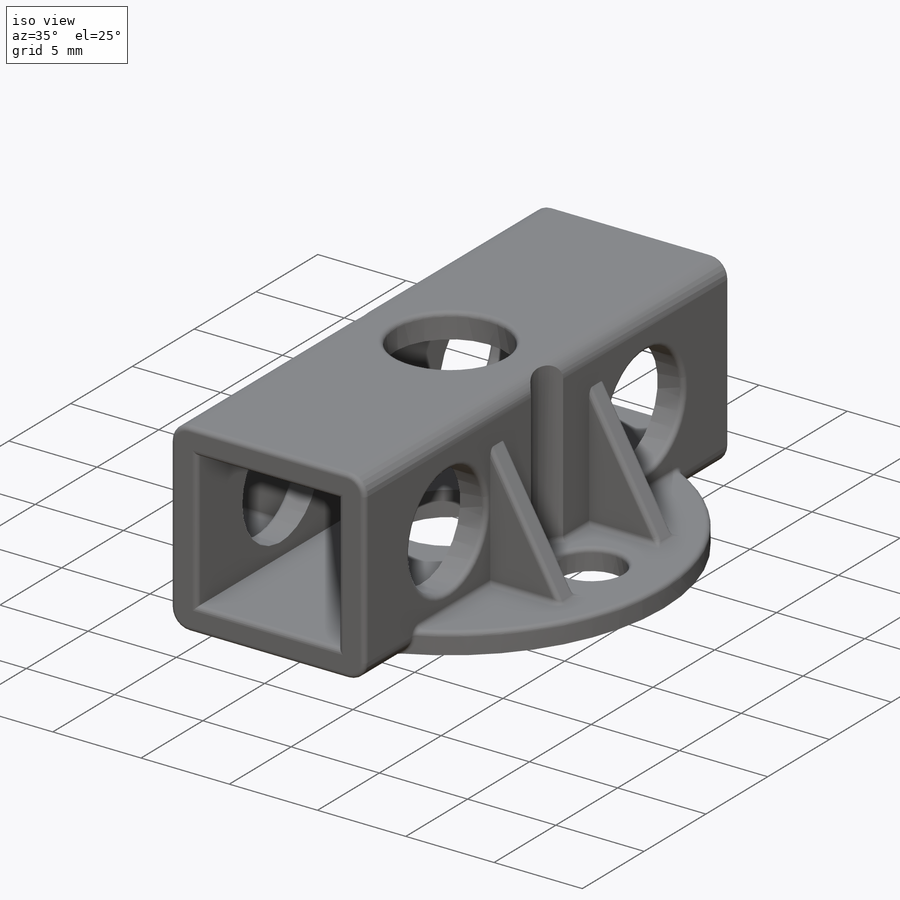
[diagram: iso view]
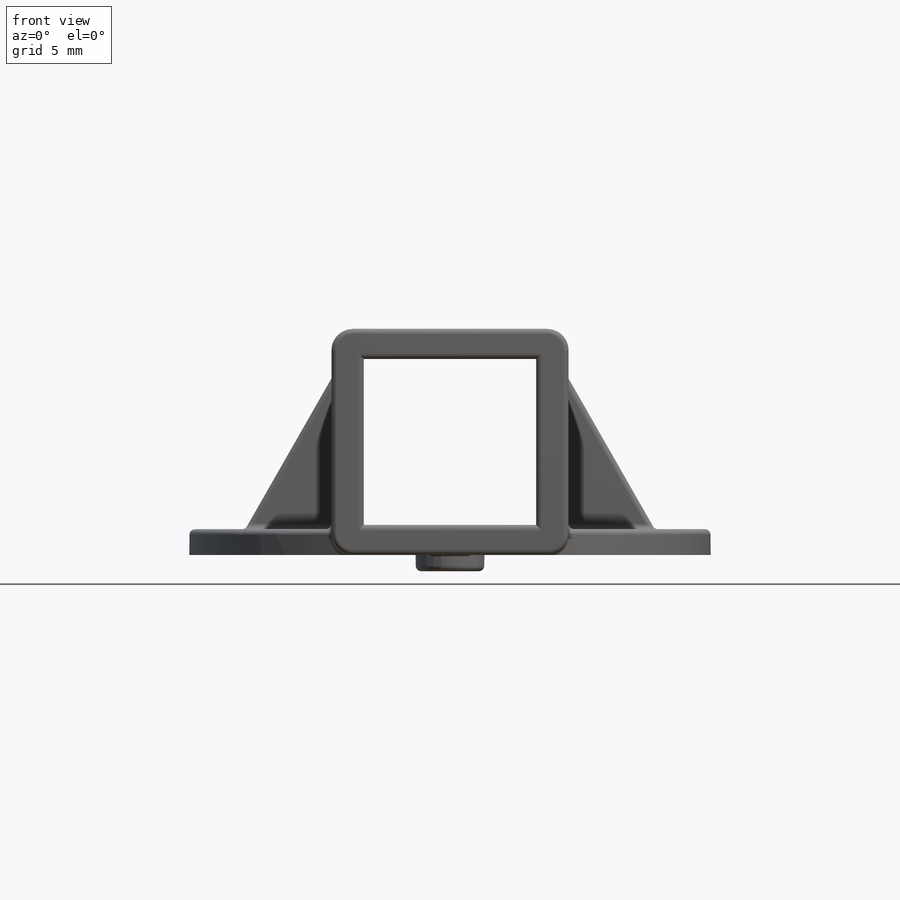
[diagram: front view]
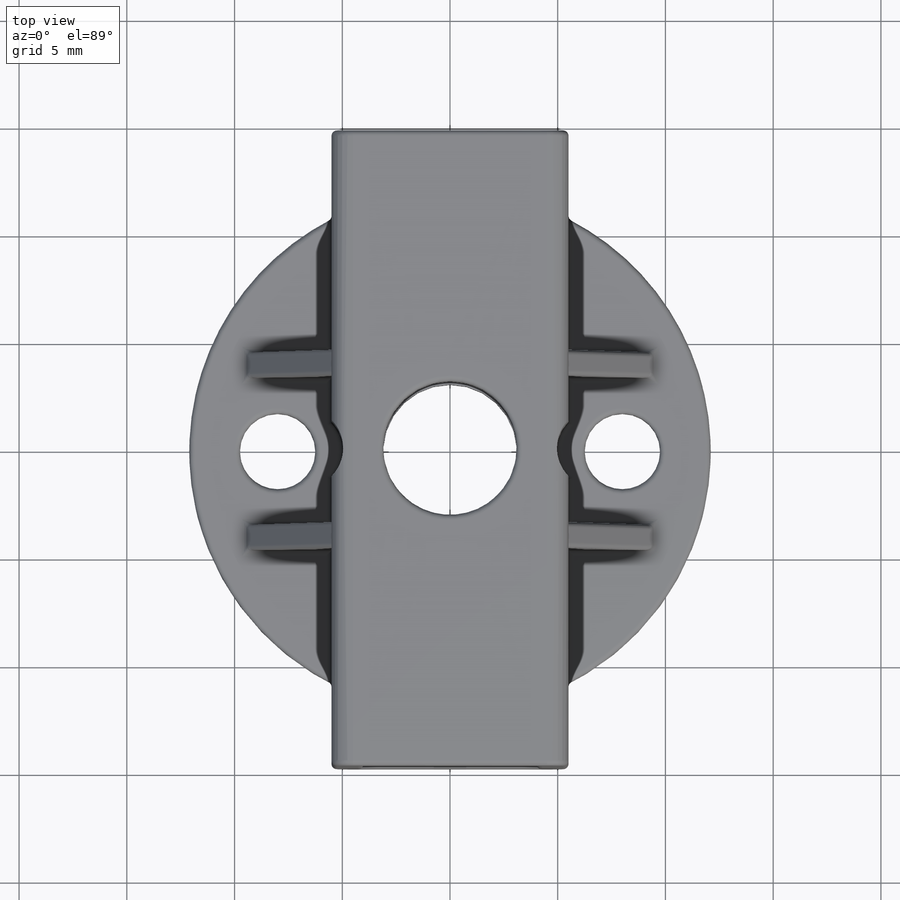
[diagram: top view]
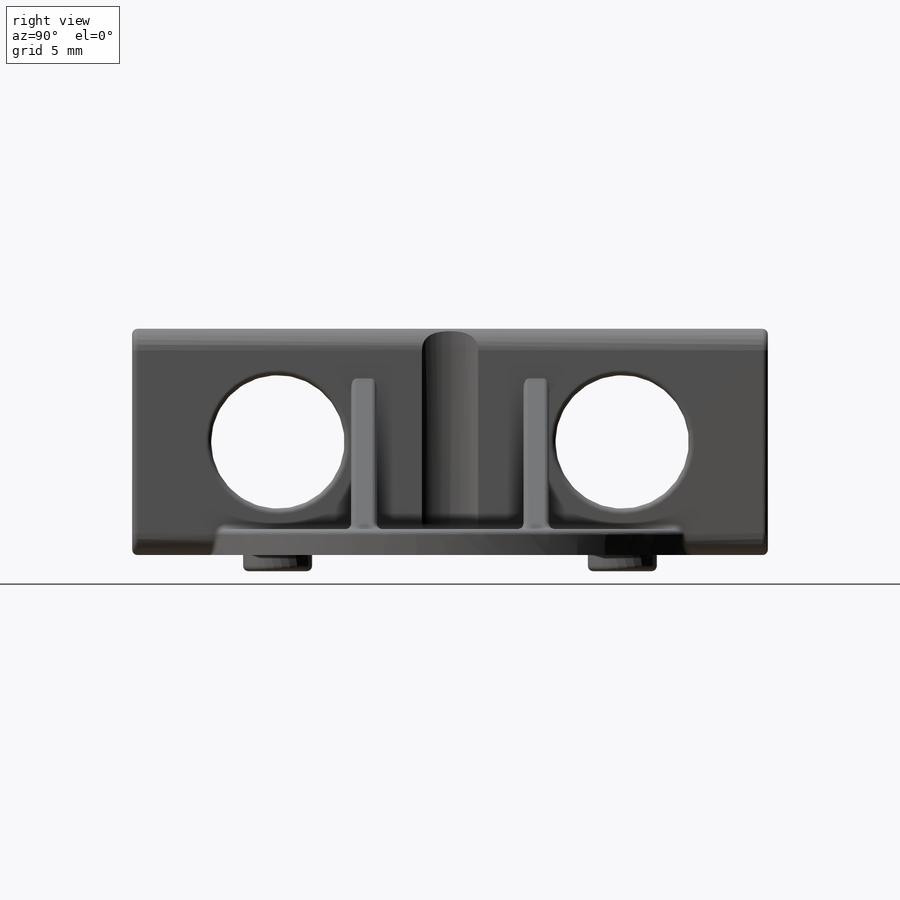
[diagram: right view]
SOLIDWORKS PART (.sldprt)
format: sldprt  version: not decoded by parser v0  size: 1,324,544 bytes
history: native  units: mm
features: fillet x35, sketch x17, cut_extrude x10, extrude x7, material x1, plane x1 (+17 scaffold rows collapsed)
feature tree (88):
  scaffold x17  (default folders/planes/origin — collapsed)
  material  "ABS"
  sketch  "Sketch1"  dims[D1=24.2mm]
  extrude  "Extrude1"  Depth=1.2mm
  sketch  "Sketch2"  dims[D1=3.5mm D2=3.5mm D3=8.0mm D4=8.0mm]
  cut_extrude  "Cut-Extrude1"  [1 undecoded]
  sketch  "Sketch4"  dims[D1=11.0mm D2=5.5mm D3=14.75mm D4=14.75mm]
  extrude  "Extrude2"  Depth=10.5mm
  plane  "Plane1"
  sketch  "Sketch5"  dims[D1=8.0mm D2=7.7mm D3=4.0mm D4=1.4mm D5=1.4mm]
  cut_extrude  "Cut-Extrude2"  [1 undecoded]
  sketch  "Sketch6"  dims[D1=6.2mm]
  cut_extrude  "Cut-Extrude3"  [1 undecoded]
  sketch  "Sketch7"  dims[D1=6.2mm D2=6.2mm D3=7.99mm D4=7.99mm D5=5.25mm D6=5.25mm]
  cut_extrude  "Cut-Extrude4"  [1 undecoded]
  sketch  "Sketch8"  dims[D1=5.0mm D2=5.0mm D3=8.0mm D4=8.0mm]
  cut_extrude  "Cut-Extrude5"  Depth=0.25mm
  sketch  "Sketch10"  dims[D1=3.2mm D2=3.2mm]
  extrude  "Extrude3"  Depth=1mm
  sketch  "Sketch11"
  cut_extrude  "Cut-Extrude7"  [1 undecoded]
  sketch  "Sketch13"  dims[D1=1.2mm D2=11.35mm D3=7.0mm]
  extrude  "Extrude4"  Depth=4mm
  sketch  "Sketch14"
  cut_extrude  "Cut-Extrude10"  [1 undecoded]
  sketch  "Sketch16"  dims[D1=1.2mm D2=11.35mm]
  extrude  "Extrude5"  Depth=4mm
  sketch  "Sketch17"
  cut_extrude  "Cut-Extrude11"  Depth=2mm
  sketch  "Sketch18"  dims[D1=1.2mm D2=7.0mm D3=11.35mm]
  extrude  "Extrude6"  Depth=4mm
  sketch  "Sketch19"
  cut_extrude  "Cut-Extrude12"  Depth=2mm
  sketch  "Sketch20"  dims[D1=1.2mm D2=11.35mm]
  extrude  "Extrude7"  Depth=4mm
  sketch  "Sketch21"
  cut_extrude  "Cut-Extrude13"  Depth=2mm
  fillet  "Fillet1"  Radius=1mm
  fillet  "Fillet2"  Radius=1mm
  fillet  "Fillet3"  Radius=1mm
  fillet  "Fillet4"  Radius=1mm
  fillet  "Fillet5"  Radius=1mm
  fillet  "Fillet6"  Radius=1mm
  fillet  "Fillet7"  Radius=0.25mm
  fillet  "Fillet8"  Radius=0.25mm
  fillet  "Fillet9"  Radius=0.25mm
  fillet  "Fillet10"  Radius=0.25mm
  fillet  "Fillet11"  Radius=0.25mm
  fillet  "Fillet12"  Radius=0.25mm
  fillet  "Fillet13"  Radius=0.25mm
  fillet  "Fillet15"  Radius=0.25mm
  fillet  "Fillet16"  Radius=0.25mm
  fillet  "Fillet17"  Radius=0.25mm
  fillet  "Fillet21"  Radius=0.25mm
  fillet  "Fillet23"  Radius=0.25mm
  fillet  "Fillet25"  Radius=0.25mm
  fillet  "Fillet26"  Radius=0.25mm
  fillet  "Fillet27"  Radius=0.25mm
  fillet  "Fillet28"  Radius=0.25mm
  fillet  "Fillet29"  Radius=0.25mm
  fillet  "Fillet30"  Radius=0.25mm
  fillet  "Fillet31"  Radius=0.25mm
  fillet  "Fillet32"  Radius=0.25mm
  fillet  "Fillet33"  Radius=0.25mm
  fillet  "Fillet34"  Radius=0.25mm
  fillet  "Fillet35"  Radius=0.25mm
  fillet  "Fillet36"  Radius=0.25mm
  fillet  "Fillet37"  Radius=0.25mm
  fillet  "Fillet38"  Radius=0.25mm
  fillet  "Fillet39"  Radius=0.25mm
  fillet  "Fillet40"  Radius=0.25mm
  fillet  "Fillet41"  Radius=0.25mm
decode coverage: 58 of 69 modeling features carry decoded parameters
note: 6 parameter values undecoded
summary: no parameter record found for 6 features
note: suppression state not decoded; provenance and decode notes live in map.json
